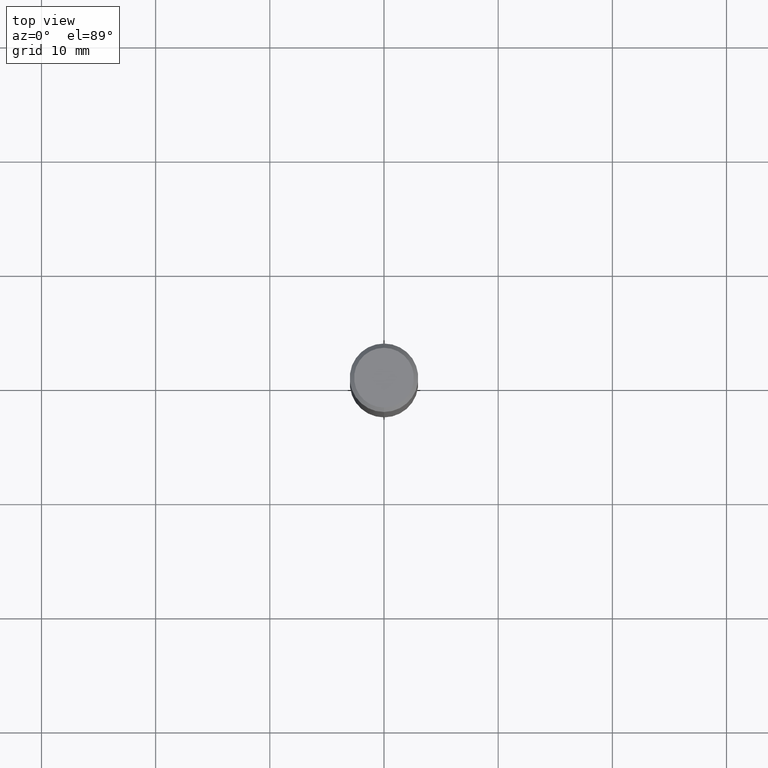
[diagram: clean part render]
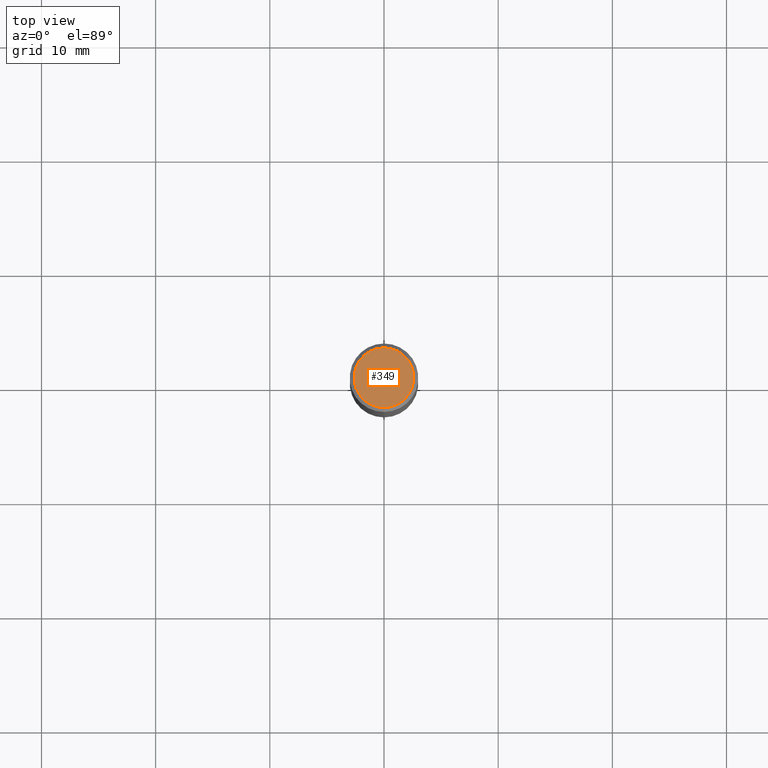
[diagram: same view with one face highlighted and labeled with its STEP entity id]
A machine part, top view. The second image highlights one B-rep face of the part: STEP entity #349.
In plain terms, the highlighted planar face has unit normal (0, -0, -1).
Its self-contained STEP definition (entity closure, byte-faithful):
#22 = CARTESIAN_POINT ( 'NONE',  ( -7.587710785535310407E-16, -0.1031000000000000111, 3.312380692850428747E-16 ) ) ;
#55 = CIRCLE ( 'NONE', #137, 0.1031000000000000111 ) ;
#57 = PLANE ( 'NONE',  #425 ) ;
#66 = DIRECTION ( 'NONE',  ( -6.982962677686265922E-15, -1.000000000000000000, 3.491702207079214016E-15 ) ) ;
#137 = AXIS2_PLACEMENT_3D ( 'NONE', #311, #177, #429 ) ;
#151 = DIRECTION ( 'NONE',  ( 2.445314574720221172E-29, -3.491702207079214016E-15, -1.000000000000000000 ) ) ;
#170 = ORIENTED_EDGE ( 'NONE', *, *, #558, .T. ) ;
#177 = DIRECTION ( 'NONE',  ( -2.445314574720221452E-29, 3.491702207079214016E-15, 1.000000000000000000 ) ) ;
#194 = DIRECTION ( 'NONE',  ( 6.982962677686265922E-15, 1.000000000000000000, -3.491702207079214016E-15 ) ) ;
#205 = AXIS2_PLACEMENT_3D ( 'NONE', #475, #346, #66 ) ;
#311 = CARTESIAN_POINT ( 'NONE',  ( 7.024477919222300476E-46, -1.005144752683258765E-31, -2.875642826482414108E-17 ) ) ;
#336 = VERTEX_POINT ( 'NONE', #22 ) ;
#344 = ORIENTED_EDGE ( 'NONE', *, *, #478, .T. ) ;
#346 = DIRECTION ( 'NONE',  ( -2.445314574720221452E-29, 3.491702207079214016E-15, 1.000000000000000000 ) ) ;
#349 = ADVANCED_FACE ( 'NONE', ( #546 ), #57, .F. ) ;
#380 = CARTESIAN_POINT ( 'NONE',  ( 7.723156721521011834E-16, 0.1031000000000000111, -3.887509258146911569E-16 ) ) ;
#425 = AXIS2_PLACEMENT_3D ( 'NONE', #501, #151, #194 ) ;
#429 = DIRECTION ( 'NONE',  ( -6.982962677686265922E-15, -1.000000000000000000, 3.491702207079214016E-15 ) ) ;
#443 = CIRCLE ( 'NONE', #205, 0.1031000000000000111 ) ;
#475 = CARTESIAN_POINT ( 'NONE',  ( 7.024477919222300476E-46, -1.005144752683258765E-31, -2.875642826482414108E-17 ) ) ;
#478 = EDGE_CURVE ( 'NONE', #519, #336, #443, .T. ) ;
#501 = CARTESIAN_POINT ( 'NONE',  ( 7.199434520694541042E-16, 0.1031000000000000111, -1.353360122366559931E-16 ) ) ;
#519 = VERTEX_POINT ( 'NONE', #380 ) ;
#546 = FACE_OUTER_BOUND ( 'NONE', #555, .T. ) ;
#555 = EDGE_LOOP ( 'NONE', ( #344, #170 ) ) ;
#558 = EDGE_CURVE ( 'NONE', #336, #519, #55, .T. ) ;